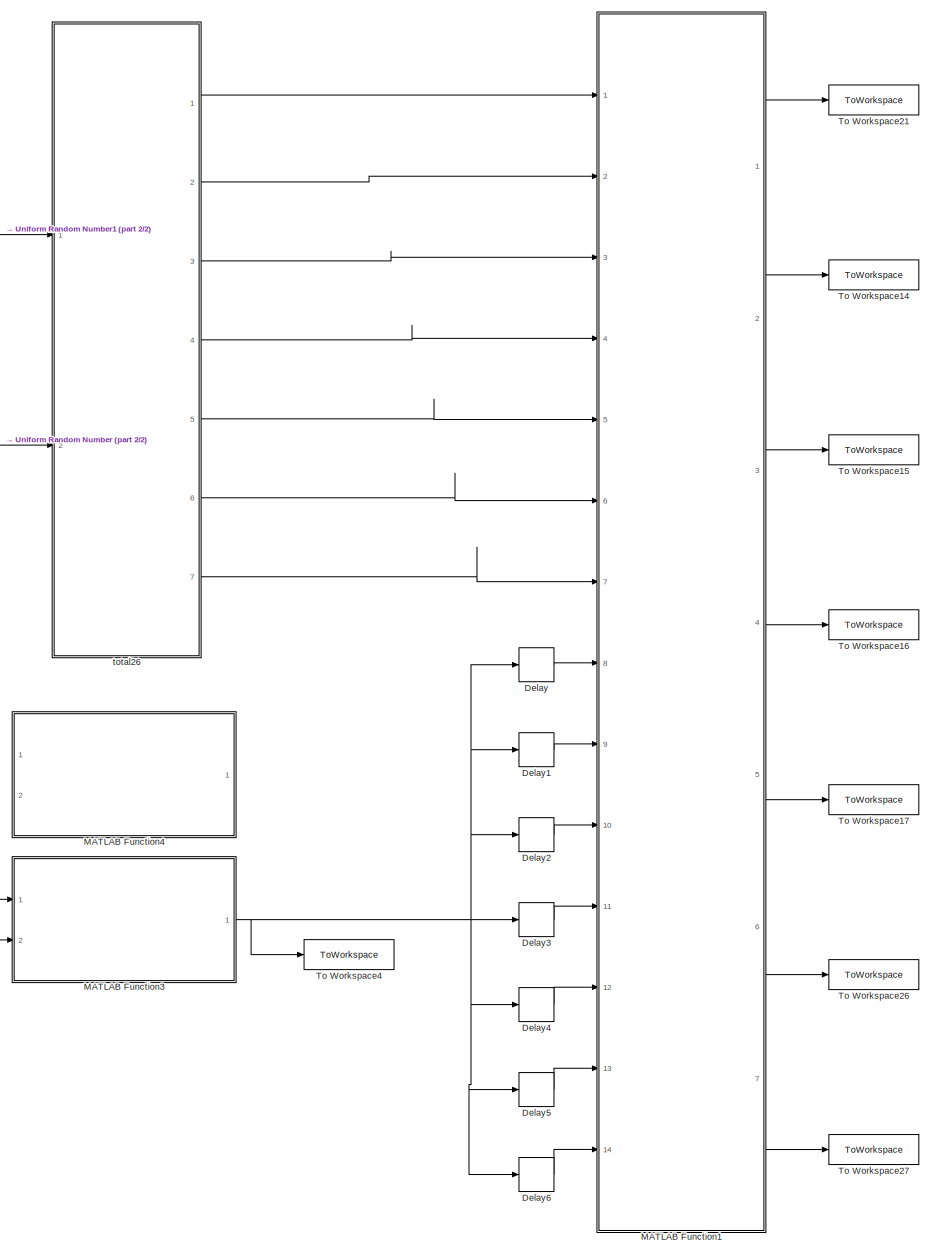
[diagram: root canvas - part 1/2, center side, full height]
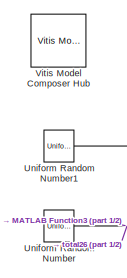
[diagram: root canvas - part 2/2, middle left region]
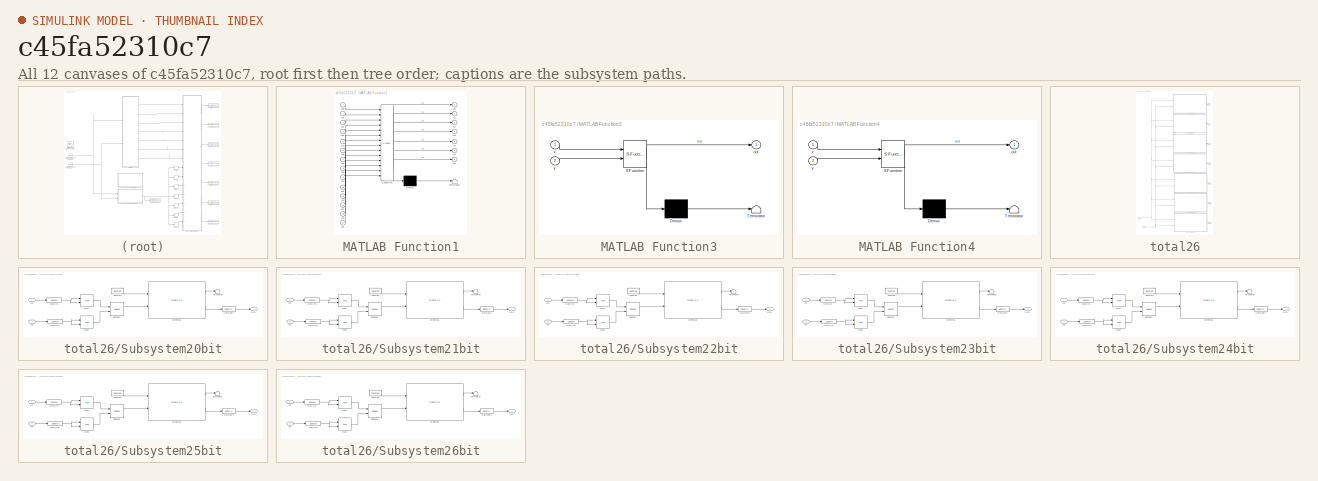
[diagram: thumbnail index - all 12 canvases of the model, root first then tree order]
MODEL slx_c45fa52310c7
KIND model
CONFIG AbsTol = auto
CONFIG EnableMultiTasking = off
CONFIG FixedStep = auto
CONFIG MaxStep = auto
CONFIG MinStep = auto
CONFIG RelTol = 1e-3
CONFIG SampleTimeConstraint = Unconstrained
CONFIG SolverName = VariableStepAuto
CONFIG StartTime = 0.0
CONFIG StopTime = 126
BLOCK [Delay] Delay
  DelayLength = 21
  InputPortMap = u0
  Ports = [1, 1]
BLOCK [Delay] Delay1
  DelayLength = 22
  InputPortMap = u0
  Ports = [1, 1]
BLOCK [Delay] Delay2
  DelayLength = 23
  InputPortMap = u0
  Ports = [1, 1]
BLOCK [Delay] Delay3
  DelayLength = 24
  InputPortMap = u0
  Ports = [1, 1]
BLOCK [Delay] Delay4
  DelayLength = 25
  InputPortMap = u0
  Ports = [1, 1]
BLOCK [Delay] Delay5
  DelayLength = 26
  InputPortMap = u0
  Ports = [1, 1]
BLOCK [Delay] Delay6
  DelayLength = 27
  InputPortMap = u0
  Ports = [1, 1]
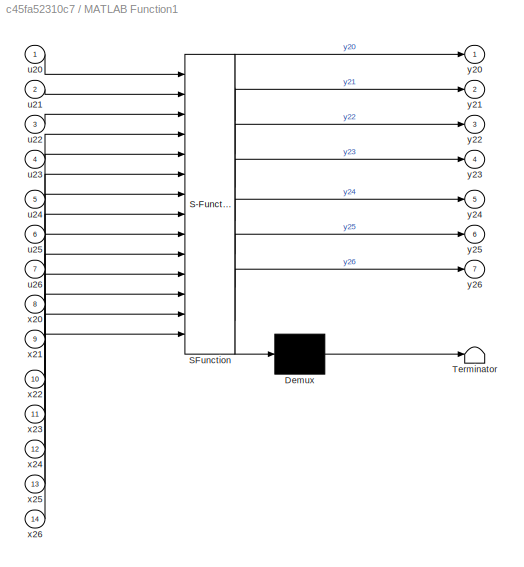
BLOCK [SubSystem] MATLAB Function1
  ErrorFcn = Stateflow.Translate.translate
  PermitHierarchicalResolution = ExplicitOnly
  Ports = [14, 7]
  RequestExecContextInheritance = off
  SFBlockType = MATLAB Function
  TreatAsAtomicUnit = on
BLOCK [Demux] MATLAB Function1/ Demux 
  Outputs = 1
  Ports = [1, 1]
BLOCK [S-Function] MATLAB Function1/ SFunction 
  EnableBusSupport = on
  FunctionName = sf_sfun
  PortCounts = [14 8]
  Ports = [14, 8]
  SFcnIsStateOwnerBlock = off
  SFunctionDeploymentMode = off
  Tag = Stateflow S-Function 1
BLOCK [Terminator] MATLAB Function1/ Terminator 
BLOCK [Inport] MATLAB Function1/u20
BLOCK [Inport] MATLAB Function1/u21
  Port = 2
BLOCK [Inport] MATLAB Function1/u22
  Port = 3
BLOCK [Inport] MATLAB Function1/u23
  Port = 4
BLOCK [Inport] MATLAB Function1/u24
  Port = 5
BLOCK [Inport] MATLAB Function1/u25
  Port = 6
BLOCK [Inport] MATLAB Function1/u26
  Port = 7
BLOCK [Inport] MATLAB Function1/x20
  Port = 8
BLOCK [Inport] MATLAB Function1/x21
  Port = 9
BLOCK [Inport] MATLAB Function1/x22
  Port = 10
BLOCK [Inport] MATLAB Function1/x23
  Port = 11
BLOCK [Inport] MATLAB Function1/x24
  Port = 12
BLOCK [Inport] MATLAB Function1/x25
  Port = 13
BLOCK [Inport] MATLAB Function1/x26
  Port = 14
BLOCK [Outport] MATLAB Function1/y20
BLOCK [Outport] MATLAB Function1/y21
  Port = 2
BLOCK [Outport] MATLAB Function1/y22
  Port = 3
BLOCK [Outport] MATLAB Function1/y23
  Port = 4
BLOCK [Outport] MATLAB Function1/y24
  Port = 5
BLOCK [Outport] MATLAB Function1/y25
  Port = 6
BLOCK [Outport] MATLAB Function1/y26
  Port = 7
BLOCK [SubSystem] MATLAB Function3
  ErrorFcn = Stateflow.Translate.translate
  PermitHierarchicalResolution = ExplicitOnly
  Ports = [2, 1]
  RequestExecContextInheritance = off
  SFBlockType = MATLAB Function
  TreatAsAtomicUnit = on
BLOCK [Demux] MATLAB Function3/ Demux 
  Outputs = 1
  Ports = [1, 1]
BLOCK [S-Function] MATLAB Function3/ SFunction 
  EnableBusSupport = on
  FunctionName = sf_sfun
  PortCounts = [2 2]
  Ports = [2, 2]
  SFcnIsStateOwnerBlock = off
  SFunctionDeploymentMode = off
  Tag = Stateflow S-Function 2
BLOCK [Terminator] MATLAB Function3/ Terminator 
BLOCK [Outport] MATLAB Function3/out
BLOCK [Inport] MATLAB Function3/x
BLOCK [Inport] MATLAB Function3/y
  Port = 2
BLOCK [SubSystem] MATLAB Function4
  Commented = on
  ErrorFcn = Stateflow.Translate.translate
  PermitHierarchicalResolution = ExplicitOnly
  Ports = [2, 1]
  RequestExecContextInheritance = off
  SFBlockType = MATLAB Function
  TreatAsAtomicUnit = on
BLOCK [Demux] MATLAB Function4/ Demux 
  Outputs = 1
  Ports = [1, 1]
BLOCK [S-Function] MATLAB Function4/ SFunction 
  EnableBusSupport = on
  FunctionName = sf_sfun
  PortCounts = [2 2]
  Ports = [2, 2]
  SFcnIsStateOwnerBlock = off
  SFunctionDeploymentMode = off
  Tag = Stateflow S-Function 4
BLOCK [Terminator] MATLAB Function4/ Terminator 
BLOCK [Outport] MATLAB Function4/out
BLOCK [Inport] MATLAB Function4/x
BLOCK [Inport] MATLAB Function4/y
  Port = 2
BLOCK [ToWorkspace] To Workspace14
  FixptAsFi = on
  MaxDataPoints = inf
  Ports = [1]
  SampleTime = -1
  SaveFormat = Structure With Time
  VariableName = out21
BLOCK [ToWorkspace] To Workspace15
  FixptAsFi = on
  MaxDataPoints = inf
  Ports = [1]
  SampleTime = -1
  SaveFormat = Structure With Time
  VariableName = out22
BLOCK [ToWorkspace] To Workspace16
  FixptAsFi = on
  MaxDataPoints = inf
  Ports = [1]
  SampleTime = -1
  SaveFormat = Structure With Time
  VariableName = out23
BLOCK [ToWorkspace] To Workspace17
  FixptAsFi = on
  MaxDataPoints = inf
  Ports = [1]
  SampleTime = -1
  SaveFormat = Structure With Time
  VariableName = out24
BLOCK [ToWorkspace] To Workspace21
  FixptAsFi = on
  MaxDataPoints = inf
  Ports = [1]
  SampleTime = -1
  SaveFormat = Structure With Time
  VariableName = out20
BLOCK [ToWorkspace] To Workspace26
  FixptAsFi = on
  MaxDataPoints = inf
  Ports = [1]
  SampleTime = -1
  SaveFormat = Structure With Time
  VariableName = out25
BLOCK [ToWorkspace] To Workspace27
  FixptAsFi = on
  MaxDataPoints = inf
  Ports = [1]
  SampleTime = -1
  SaveFormat = Structure With Time
  VariableName = out26
BLOCK [ToWorkspace] To Workspace4
  FixptAsFi = on
  MaxDataPoints = inf
  Ports = [1]
  SampleTime = -1
  SaveFormat = Structure With Time
  VariableName = outGOLD
BLOCK [UniformRandomNumber] Uniform Random Number
  Maximum = 0.9
  Minimum = -0.9
  SampleTime = 1
BLOCK [UniformRandomNumber] Uniform Random Number1
  Maximum = 0.9
  Minimum = -0.9
  SampleTime = 1
  Seed = 1
BLOCK [Reference] Vitis Model Composer Hub  REF=vmcUtilities/Vitis Model Composer Hub
  Ports = []
  SourceBlock = vmcUtilities/Vitis Model Composer Hub
  SourceType = Implementation
  Tag = genX
  UserDataPersistent = on
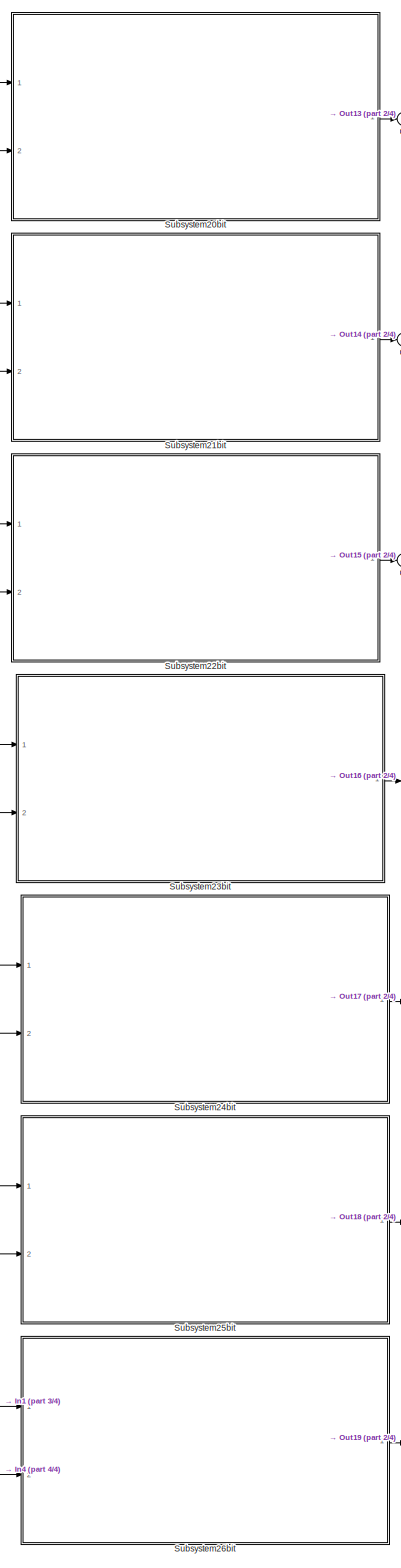
[diagram: total26 - part 1/4, right side, full height]
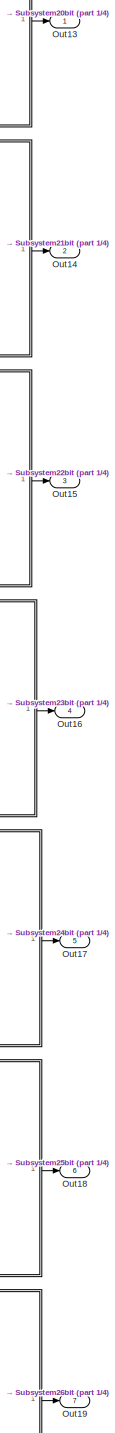
[diagram: total26 - part 2/4, right side, full height]
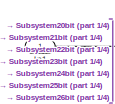
[diagram: total26 - part 3/4, bottom left region]
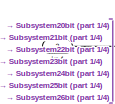
[diagram: total26 - part 4/4, bottom left region]
BLOCK [SubSystem] total26
  Ports = [2, 7]
  RequestExecContextInheritance = off
BLOCK [Inport] total26/In1
BLOCK [Inport] total26/In4
  Port = 2
BLOCK [Outport] total26/Out13
BLOCK [Outport] total26/Out14
  Port = 2
BLOCK [Outport] total26/Out15
  Port = 3
BLOCK [Outport] total26/Out16
  Port = 4
BLOCK [Outport] total26/Out17
  Port = 5
BLOCK [Outport] total26/Out18
  Port = 6
BLOCK [Outport] total26/Out19
  Port = 7
BLOCK [SubSystem] total26/Subsystem20bit
  Ports = [2, 1]
  RequestExecContextInheritance = off
BLOCK [Reference] total26/Subsystem20bit/CORDIC16  REF=hdlDSPIP/CORDIC 6.0 
  Ports = [2, 2]
  SourceBlock = hdlDSPIP/CORDIC 6.0
  SourceType = CORDIC 6.0 Block
BLOCK [Reference] total26/Subsystem20bit/Constant  REF=hdlBasic/Constant
  Ports = [0, 1]
  SourceBlock = hdlBasic/Constant
  SourceType = Constant Block Block
BLOCK [Reference] total26/Subsystem20bit/Gate_In1  REF=hdlBasic/Gateway In
  Ports = [1, 1]
  SourceBlock = hdlBasic/Gateway In
  SourceType = Gateway In Block
BLOCK [Reference] total26/Subsystem20bit/Gate_In2  REF=hdlBasic/Gateway In
  Ports = [1, 1]
  SourceBlock = hdlBasic/Gateway In
  SourceType = Gateway In Block
BLOCK [Reference] total26/Subsystem20bit/Gate_out1  REF=hdlBasic/Gateway Out
  Ports = [1, 1]
  SourceBlock = hdlBasic/Gateway Out
  SourceType = Gateway Out Block
BLOCK [Inport] total26/Subsystem20bit/In1
BLOCK [Inport] total26/Subsystem20bit/In2
  Port = 2
BLOCK [Reference] total26/Subsystem20bit/Mult1  REF=hdlBasic/Mult
  Ports = [2, 1]
  SourceBlock = hdlBasic/Mult
  SourceType = Multiplier Block
BLOCK [Reference] total26/Subsystem20bit/Mult2  REF=hdlBasic/Mult
  Ports = [2, 1]
  SourceBlock = hdlBasic/Mult
  SourceType = Multiplier Block
BLOCK [Outport] total26/Subsystem20bit/Out1
BLOCK [Terminator] total26/Subsystem20bit/Terminator
BLOCK [Reference] total26/Subsystem20bit/addsub1  REF=hdlBasic/AddSub
  Ports = [2, 1]
  SourceBlock = hdlBasic/AddSub
  SourceType = Adder/Subtracter Block
BLOCK [SubSystem] total26/Subsystem21bit
  Ports = [2, 1]
  RequestExecContextInheritance = off
BLOCK [Reference] total26/Subsystem21bit/CORDIC16  REF=hdlDSPIP/CORDIC 6.0 
  Ports = [2, 2]
  SourceBlock = hdlDSPIP/CORDIC 6.0
  SourceType = CORDIC 6.0 Block
BLOCK [Reference] total26/Subsystem21bit/Constant  REF=hdlBasic/Constant
  Ports = [0, 1]
  SourceBlock = hdlBasic/Constant
  SourceType = Constant Block Block
BLOCK [Reference] total26/Subsystem21bit/Gate_In1  REF=hdlBasic/Gateway In
  Ports = [1, 1]
  SourceBlock = hdlBasic/Gateway In
  SourceType = Gateway In Block
BLOCK [Reference] total26/Subsystem21bit/Gate_In2  REF=hdlBasic/Gateway In
  Ports = [1, 1]
  SourceBlock = hdlBasic/Gateway In
  SourceType = Gateway In Block
BLOCK [Reference] total26/Subsystem21bit/Gate_out1  REF=hdlBasic/Gateway Out
  Ports = [1, 1]
  SourceBlock = hdlBasic/Gateway Out
  SourceType = Gateway Out Block
BLOCK [Inport] total26/Subsystem21bit/In1
BLOCK [Inport] total26/Subsystem21bit/In2
  Port = 2
BLOCK [Reference] total26/Subsystem21bit/Mult1  REF=hdlBasic/Mult
  Ports = [2, 1]
  SourceBlock = hdlBasic/Mult
  SourceType = Multiplier Block
BLOCK [Reference] total26/Subsystem21bit/Mult2  REF=hdlBasic/Mult
  Ports = [2, 1]
  SourceBlock = hdlBasic/Mult
  SourceType = Multiplier Block
BLOCK [Outport] total26/Subsystem21bit/Out1
BLOCK [Terminator] total26/Subsystem21bit/Terminator
BLOCK [Reference] total26/Subsystem21bit/addsub1  REF=hdlBasic/AddSub
  Ports = [2, 1]
  SourceBlock = hdlBasic/AddSub
  SourceType = Adder/Subtracter Block
BLOCK [SubSystem] total26/Subsystem22bit
  Ports = [2, 1]
  RequestExecContextInheritance = off
BLOCK [Reference] total26/Subsystem22bit/CORDIC16  REF=hdlDSPIP/CORDIC 6.0 
  Ports = [2, 2]
  SourceBlock = hdlDSPIP/CORDIC 6.0
  SourceType = CORDIC 6.0 Block
BLOCK [Reference] total26/Subsystem22bit/Constant  REF=hdlBasic/Constant
  Ports = [0, 1]
  SourceBlock = hdlBasic/Constant
  SourceType = Constant Block Block
BLOCK [Reference] total26/Subsystem22bit/Gate_In1  REF=hdlBasic/Gateway In
  Ports = [1, 1]
  SourceBlock = hdlBasic/Gateway In
  SourceType = Gateway In Block
BLOCK [Reference] total26/Subsystem22bit/Gate_In2  REF=hdlBasic/Gateway In
  Ports = [1, 1]
  SourceBlock = hdlBasic/Gateway In
  SourceType = Gateway In Block
BLOCK [Reference] total26/Subsystem22bit/Gate_out1  REF=hdlBasic/Gateway Out
  Ports = [1, 1]
  SourceBlock = hdlBasic/Gateway Out
  SourceType = Gateway Out Block
BLOCK [Inport] total26/Subsystem22bit/In1
BLOCK [Inport] total26/Subsystem22bit/In2
  Port = 2
BLOCK [Reference] total26/Subsystem22bit/Mult1  REF=hdlBasic/Mult
  Ports = [2, 1]
  SourceBlock = hdlBasic/Mult
  SourceType = Multiplier Block
BLOCK [Reference] total26/Subsystem22bit/Mult2  REF=hdlBasic/Mult
  Ports = [2, 1]
  SourceBlock = hdlBasic/Mult
  SourceType = Multiplier Block
BLOCK [Outport] total26/Subsystem22bit/Out1
BLOCK [Terminator] total26/Subsystem22bit/Terminator
BLOCK [Reference] total26/Subsystem22bit/addsub1  REF=hdlBasic/AddSub
  Ports = [2, 1]
  SourceBlock = hdlBasic/AddSub
  SourceType = Adder/Subtracter Block
BLOCK [SubSystem] total26/Subsystem23bit
  Ports = [2, 1]
  RequestExecContextInheritance = off
BLOCK [Reference] total26/Subsystem23bit/CORDIC16  REF=hdlDSPIP/CORDIC 6.0 
  Ports = [2, 2]
  SourceBlock = hdlDSPIP/CORDIC 6.0
  SourceType = CORDIC 6.0 Block
BLOCK [Reference] total26/Subsystem23bit/Constant  REF=hdlBasic/Constant
  Ports = [0, 1]
  SourceBlock = hdlBasic/Constant
  SourceType = Constant Block Block
BLOCK [Reference] total26/Subsystem23bit/Gate_In1  REF=hdlBasic/Gateway In
  Ports = [1, 1]
  SourceBlock = hdlBasic/Gateway In
  SourceType = Gateway In Block
BLOCK [Reference] total26/Subsystem23bit/Gate_In2  REF=hdlBasic/Gateway In
  Ports = [1, 1]
  SourceBlock = hdlBasic/Gateway In
  SourceType = Gateway In Block
BLOCK [Reference] total26/Subsystem23bit/Gate_out1  REF=hdlBasic/Gateway Out
  Ports = [1, 1]
  SourceBlock = hdlBasic/Gateway Out
  SourceType = Gateway Out Block
BLOCK [Inport] total26/Subsystem23bit/In1
BLOCK [Inport] total26/Subsystem23bit/In2
  Port = 2
BLOCK [Reference] total26/Subsystem23bit/Mult1  REF=hdlBasic/Mult
  Ports = [2, 1]
  SourceBlock = hdlBasic/Mult
  SourceType = Multiplier Block
BLOCK [Reference] total26/Subsystem23bit/Mult2  REF=hdlBasic/Mult
  Ports = [2, 1]
  SourceBlock = hdlBasic/Mult
  SourceType = Multiplier Block
BLOCK [Outport] total26/Subsystem23bit/Out1
BLOCK [Terminator] total26/Subsystem23bit/Terminator
BLOCK [Reference] total26/Subsystem23bit/addsub1  REF=hdlBasic/AddSub
  Ports = [2, 1]
  SourceBlock = hdlBasic/AddSub
  SourceType = Adder/Subtracter Block
BLOCK [SubSystem] total26/Subsystem24bit
  Ports = [2, 1]
  RequestExecContextInheritance = off
BLOCK [Reference] total26/Subsystem24bit/CORDIC16  REF=hdlDSPIP/CORDIC 6.0 
  Ports = [2, 2]
  SourceBlock = hdlDSPIP/CORDIC 6.0
  SourceType = CORDIC 6.0 Block
BLOCK [Reference] total26/Subsystem24bit/Constant  REF=hdlBasic/Constant
  Ports = [0, 1]
  SourceBlock = hdlBasic/Constant
  SourceType = Constant Block Block
BLOCK [Reference] total26/Subsystem24bit/Gate_In1  REF=hdlBasic/Gateway In
  Ports = [1, 1]
  SourceBlock = hdlBasic/Gateway In
  SourceType = Gateway In Block
BLOCK [Reference] total26/Subsystem24bit/Gate_In2  REF=hdlBasic/Gateway In
  Ports = [1, 1]
  SourceBlock = hdlBasic/Gateway In
  SourceType = Gateway In Block
BLOCK [Reference] total26/Subsystem24bit/Gate_out1  REF=hdlBasic/Gateway Out
  Ports = [1, 1]
  SourceBlock = hdlBasic/Gateway Out
  SourceType = Gateway Out Block
BLOCK [Inport] total26/Subsystem24bit/In1
BLOCK [Inport] total26/Subsystem24bit/In2
  Port = 2
BLOCK [Reference] total26/Subsystem24bit/Mult1  REF=hdlBasic/Mult
  Ports = [2, 1]
  SourceBlock = hdlBasic/Mult
  SourceType = Multiplier Block
BLOCK [Reference] total26/Subsystem24bit/Mult2  REF=hdlBasic/Mult
  Ports = [2, 1]
  SourceBlock = hdlBasic/Mult
  SourceType = Multiplier Block
BLOCK [Outport] total26/Subsystem24bit/Out1
BLOCK [Terminator] total26/Subsystem24bit/Terminator
BLOCK [Reference] total26/Subsystem24bit/addsub1  REF=hdlBasic/AddSub
  Ports = [2, 1]
  SourceBlock = hdlBasic/AddSub
  SourceType = Adder/Subtracter Block
BLOCK [SubSystem] total26/Subsystem25bit
  Ports = [2, 1]
  RequestExecContextInheritance = off
BLOCK [Reference] total26/Subsystem25bit/CORDIC16  REF=hdlDSPIP/CORDIC 6.0 
  Ports = [2, 2]
  SourceBlock = hdlDSPIP/CORDIC 6.0
  SourceType = CORDIC 6.0 Block
BLOCK [Reference] total26/Subsystem25bit/Constant  REF=hdlBasic/Constant
  Ports = [0, 1]
  SourceBlock = hdlBasic/Constant
  SourceType = Constant Block Block
BLOCK [Reference] total26/Subsystem25bit/Gate_In1  REF=hdlBasic/Gateway In
  Ports = [1, 1]
  SourceBlock = hdlBasic/Gateway In
  SourceType = Gateway In Block
BLOCK [Reference] total26/Subsystem25bit/Gate_In2  REF=hdlBasic/Gateway In
  Ports = [1, 1]
  SourceBlock = hdlBasic/Gateway In
  SourceType = Gateway In Block
BLOCK [Reference] total26/Subsystem25bit/Gate_out1  REF=hdlBasic/Gateway Out
  Ports = [1, 1]
  SourceBlock = hdlBasic/Gateway Out
  SourceType = Gateway Out Block
BLOCK [Inport] total26/Subsystem25bit/In1
BLOCK [Inport] total26/Subsystem25bit/In2
  Port = 2
BLOCK [Reference] total26/Subsystem25bit/Mult1  REF=hdlBasic/Mult
  Ports = [2, 1]
  SourceBlock = hdlBasic/Mult
  SourceType = Multiplier Block
BLOCK [Reference] total26/Subsystem25bit/Mult2  REF=hdlBasic/Mult
  Ports = [2, 1]
  SourceBlock = hdlBasic/Mult
  SourceType = Multiplier Block
BLOCK [Outport] total26/Subsystem25bit/Out1
BLOCK [Terminator] total26/Subsystem25bit/Terminator
BLOCK [Reference] total26/Subsystem25bit/addsub1  REF=hdlBasic/AddSub
  Ports = [2, 1]
  SourceBlock = hdlBasic/AddSub
  SourceType = Adder/Subtracter Block
BLOCK [SubSystem] total26/Subsystem26bit
  Ports = [2, 1]
  RequestExecContextInheritance = off
BLOCK [Reference] total26/Subsystem26bit/CORDIC16  REF=hdlDSPIP/CORDIC 6.0 
  Ports = [2, 2]
  SourceBlock = hdlDSPIP/CORDIC 6.0
  SourceType = CORDIC 6.0 Block
BLOCK [Reference] total26/Subsystem26bit/Constant  REF=hdlBasic/Constant
  Ports = [0, 1]
  SourceBlock = hdlBasic/Constant
  SourceType = Constant Block Block
BLOCK [Reference] total26/Subsystem26bit/Gate_In1  REF=hdlBasic/Gateway In
  Ports = [1, 1]
  SourceBlock = hdlBasic/Gateway In
  SourceType = Gateway In Block
BLOCK [Reference] total26/Subsystem26bit/Gate_In2  REF=hdlBasic/Gateway In
  Ports = [1, 1]
  SourceBlock = hdlBasic/Gateway In
  SourceType = Gateway In Block
BLOCK [Reference] total26/Subsystem26bit/Gate_out1  REF=hdlBasic/Gateway Out
  Ports = [1, 1]
  SourceBlock = hdlBasic/Gateway Out
  SourceType = Gateway Out Block
BLOCK [Inport] total26/Subsystem26bit/In1
BLOCK [Inport] total26/Subsystem26bit/In2
  Port = 2
BLOCK [Reference] total26/Subsystem26bit/Mult1  REF=hdlBasic/Mult
  Ports = [2, 1]
  SourceBlock = hdlBasic/Mult
  SourceType = Multiplier Block
BLOCK [Reference] total26/Subsystem26bit/Mult2  REF=hdlBasic/Mult
  Ports = [2, 1]
  SourceBlock = hdlBasic/Mult
  SourceType = Multiplier Block
BLOCK [Outport] total26/Subsystem26bit/Out1
BLOCK [Terminator] total26/Subsystem26bit/Terminator
BLOCK [Reference] total26/Subsystem26bit/addsub1  REF=hdlBasic/AddSub
  Ports = [2, 1]
  SourceBlock = hdlBasic/AddSub
  SourceType = Adder/Subtracter Block
LINE Delay1:1 -> MATLAB Function1:9
LINE Delay2:1 -> MATLAB Function1:10
LINE Delay3:1 -> MATLAB Function1:11
LINE Delay4:1 -> MATLAB Function1:12
LINE Delay5:1 -> MATLAB Function1:13
LINE Delay6:1 -> MATLAB Function1:14
LINE Delay:1 -> MATLAB Function1:8
LINE MATLAB Function1:1 -> To Workspace21:1
LINE MATLAB Function1:2 -> To Workspace14:1
LINE MATLAB Function1:3 -> To Workspace15:1
LINE MATLAB Function1:4 -> To Workspace16:1
LINE MATLAB Function1:5 -> To Workspace17:1
LINE MATLAB Function1:6 -> To Workspace26:1
LINE MATLAB Function1:7 -> To Workspace27:1
NET MATLAB Function3:1 -> Delay1:1, Delay2:1, Delay3:1, Delay4:1, Delay5:1, Delay6:1, Delay:1, To Workspace4:1
NET Uniform Random Number1:1 -> MATLAB Function3:1, total26:1
NET Uniform Random Number:1 -> MATLAB Function3:2, total26:2
NET total26/In1:1 -> total26/Subsystem20bit:1, total26/Subsystem21bit:1, total26/Subsystem22bit:1, total26/Subsystem23bit:1, total26/Subsystem24bit:1, total26/Subsystem25bit:1, total26/Subsystem26bit:1
NET total26/In4:1 -> total26/Subsystem20bit:2, total26/Subsystem21bit:2, total26/Subsystem22bit:2, total26/Subsystem23bit:2, total26/Subsystem24bit:2, total26/Subsystem25bit:2, total26/Subsystem26bit:2
LINE total26/Subsystem20bit/CORDIC16:1 -> total26/Subsystem20bit/Terminator:1
LINE total26/Subsystem20bit/CORDIC16:2 -> total26/Subsystem20bit/Gate_out1:1
LINE total26/Subsystem20bit/Constant:1 -> total26/Subsystem20bit/CORDIC16:1
NET total26/Subsystem20bit/Gate_In1:1 -> total26/Subsystem20bit/Mult1:1, total26/Subsystem20bit/Mult1:2
NET total26/Subsystem20bit/Gate_In2:1 -> total26/Subsystem20bit/Mult2:1, total26/Subsystem20bit/Mult2:2
LINE total26/Subsystem20bit/Gate_out1:1 -> total26/Subsystem20bit/Out1:1
LINE total26/Subsystem20bit/In1:1 -> total26/Subsystem20bit/Gate_In1:1
LINE total26/Subsystem20bit/In2:1 -> total26/Subsystem20bit/Gate_In2:1
LINE total26/Subsystem20bit/Mult1:1 -> total26/Subsystem20bit/addsub1:1
LINE total26/Subsystem20bit/Mult2:1 -> total26/Subsystem20bit/addsub1:2
LINE total26/Subsystem20bit/addsub1:1 -> total26/Subsystem20bit/CORDIC16:2
LINE total26/Subsystem20bit:1 -> total26/Out13:1
LINE total26/Subsystem21bit/CORDIC16:1 -> total26/Subsystem21bit/Terminator:1
LINE total26/Subsystem21bit/CORDIC16:2 -> total26/Subsystem21bit/Gate_out1:1
LINE total26/Subsystem21bit/Constant:1 -> total26/Subsystem21bit/CORDIC16:1
NET total26/Subsystem21bit/Gate_In1:1 -> total26/Subsystem21bit/Mult1:1, total26/Subsystem21bit/Mult1:2
NET total26/Subsystem21bit/Gate_In2:1 -> total26/Subsystem21bit/Mult2:1, total26/Subsystem21bit/Mult2:2
LINE total26/Subsystem21bit/Gate_out1:1 -> total26/Subsystem21bit/Out1:1
LINE total26/Subsystem21bit/In1:1 -> total26/Subsystem21bit/Gate_In1:1
LINE total26/Subsystem21bit/In2:1 -> total26/Subsystem21bit/Gate_In2:1
LINE total26/Subsystem21bit/Mult1:1 -> total26/Subsystem21bit/addsub1:1
LINE total26/Subsystem21bit/Mult2:1 -> total26/Subsystem21bit/addsub1:2
LINE total26/Subsystem21bit/addsub1:1 -> total26/Subsystem21bit/CORDIC16:2
LINE total26/Subsystem21bit:1 -> total26/Out14:1
LINE total26/Subsystem22bit/CORDIC16:1 -> total26/Subsystem22bit/Terminator:1
LINE total26/Subsystem22bit/CORDIC16:2 -> total26/Subsystem22bit/Gate_out1:1
LINE total26/Subsystem22bit/Constant:1 -> total26/Subsystem22bit/CORDIC16:1
NET total26/Subsystem22bit/Gate_In1:1 -> total26/Subsystem22bit/Mult1:1, total26/Subsystem22bit/Mult1:2
NET total26/Subsystem22bit/Gate_In2:1 -> total26/Subsystem22bit/Mult2:1, total26/Subsystem22bit/Mult2:2
LINE total26/Subsystem22bit/Gate_out1:1 -> total26/Subsystem22bit/Out1:1
LINE total26/Subsystem22bit/In1:1 -> total26/Subsystem22bit/Gate_In1:1
LINE total26/Subsystem22bit/In2:1 -> total26/Subsystem22bit/Gate_In2:1
LINE total26/Subsystem22bit/Mult1:1 -> total26/Subsystem22bit/addsub1:1
LINE total26/Subsystem22bit/Mult2:1 -> total26/Subsystem22bit/addsub1:2
LINE total26/Subsystem22bit/addsub1:1 -> total26/Subsystem22bit/CORDIC16:2
LINE total26/Subsystem22bit:1 -> total26/Out15:1
LINE total26/Subsystem23bit/CORDIC16:1 -> total26/Subsystem23bit/Terminator:1
LINE total26/Subsystem23bit/CORDIC16:2 -> total26/Subsystem23bit/Gate_out1:1
LINE total26/Subsystem23bit/Constant:1 -> total26/Subsystem23bit/CORDIC16:1
NET total26/Subsystem23bit/Gate_In1:1 -> total26/Subsystem23bit/Mult1:1, total26/Subsystem23bit/Mult1:2
NET total26/Subsystem23bit/Gate_In2:1 -> total26/Subsystem23bit/Mult2:1, total26/Subsystem23bit/Mult2:2
LINE total26/Subsystem23bit/Gate_out1:1 -> total26/Subsystem23bit/Out1:1
LINE total26/Subsystem23bit/In1:1 -> total26/Subsystem23bit/Gate_In1:1
LINE total26/Subsystem23bit/In2:1 -> total26/Subsystem23bit/Gate_In2:1
LINE total26/Subsystem23bit/Mult1:1 -> total26/Subsystem23bit/addsub1:1
LINE total26/Subsystem23bit/Mult2:1 -> total26/Subsystem23bit/addsub1:2
LINE total26/Subsystem23bit/addsub1:1 -> total26/Subsystem23bit/CORDIC16:2
LINE total26/Subsystem23bit:1 -> total26/Out16:1
LINE total26/Subsystem24bit/CORDIC16:1 -> total26/Subsystem24bit/Terminator:1
LINE total26/Subsystem24bit/CORDIC16:2 -> total26/Subsystem24bit/Gate_out1:1
LINE total26/Subsystem24bit/Constant:1 -> total26/Subsystem24bit/CORDIC16:1
NET total26/Subsystem24bit/Gate_In1:1 -> total26/Subsystem24bit/Mult1:1, total26/Subsystem24bit/Mult1:2
NET total26/Subsystem24bit/Gate_In2:1 -> total26/Subsystem24bit/Mult2:1, total26/Subsystem24bit/Mult2:2
LINE total26/Subsystem24bit/Gate_out1:1 -> total26/Subsystem24bit/Out1:1
LINE total26/Subsystem24bit/In1:1 -> total26/Subsystem24bit/Gate_In1:1
LINE total26/Subsystem24bit/In2:1 -> total26/Subsystem24bit/Gate_In2:1
LINE total26/Subsystem24bit/Mult1:1 -> total26/Subsystem24bit/addsub1:1
LINE total26/Subsystem24bit/Mult2:1 -> total26/Subsystem24bit/addsub1:2
LINE total26/Subsystem24bit/addsub1:1 -> total26/Subsystem24bit/CORDIC16:2
LINE total26/Subsystem24bit:1 -> total26/Out17:1
LINE total26/Subsystem25bit/CORDIC16:1 -> total26/Subsystem25bit/Terminator:1
LINE total26/Subsystem25bit/CORDIC16:2 -> total26/Subsystem25bit/Gate_out1:1
LINE total26/Subsystem25bit/Constant:1 -> total26/Subsystem25bit/CORDIC16:1
NET total26/Subsystem25bit/Gate_In1:1 -> total26/Subsystem25bit/Mult1:1, total26/Subsystem25bit/Mult1:2
NET total26/Subsystem25bit/Gate_In2:1 -> total26/Subsystem25bit/Mult2:1, total26/Subsystem25bit/Mult2:2
LINE total26/Subsystem25bit/Gate_out1:1 -> total26/Subsystem25bit/Out1:1
LINE total26/Subsystem25bit/In1:1 -> total26/Subsystem25bit/Gate_In1:1
LINE total26/Subsystem25bit/In2:1 -> total26/Subsystem25bit/Gate_In2:1
LINE total26/Subsystem25bit/Mult1:1 -> total26/Subsystem25bit/addsub1:1
LINE total26/Subsystem25bit/Mult2:1 -> total26/Subsystem25bit/addsub1:2
LINE total26/Subsystem25bit/addsub1:1 -> total26/Subsystem25bit/CORDIC16:2
LINE total26/Subsystem25bit:1 -> total26/Out18:1
LINE total26/Subsystem26bit/CORDIC16:1 -> total26/Subsystem26bit/Terminator:1
LINE total26/Subsystem26bit/CORDIC16:2 -> total26/Subsystem26bit/Gate_out1:1
LINE total26/Subsystem26bit/Constant:1 -> total26/Subsystem26bit/CORDIC16:1
NET total26/Subsystem26bit/Gate_In1:1 -> total26/Subsystem26bit/Mult1:1, total26/Subsystem26bit/Mult1:2
NET total26/Subsystem26bit/Gate_In2:1 -> total26/Subsystem26bit/Mult2:1, total26/Subsystem26bit/Mult2:2
LINE total26/Subsystem26bit/Gate_out1:1 -> total26/Subsystem26bit/Out1:1
LINE total26/Subsystem26bit/In1:1 -> total26/Subsystem26bit/Gate_In1:1
LINE total26/Subsystem26bit/In2:1 -> total26/Subsystem26bit/Gate_In2:1
LINE total26/Subsystem26bit/Mult1:1 -> total26/Subsystem26bit/addsub1:1
LINE total26/Subsystem26bit/Mult2:1 -> total26/Subsystem26bit/addsub1:2
LINE total26/Subsystem26bit/addsub1:1 -> total26/Subsystem26bit/CORDIC16:2
LINE total26/Subsystem26bit:1 -> total26/Out19:1
LINE total26:1 -> MATLAB Function1:1
LINE total26:2 -> MATLAB Function1:2
LINE total26:3 -> MATLAB Function1:3
LINE total26:4 -> MATLAB Function1:4
LINE total26:5 -> MATLAB Function1:5
LINE total26:6 -> MATLAB Function1:6
LINE total26:7 -> MATLAB Function1:7
note: NET lines group one-source signal fan-out (src -> all destinations, sorted); 1:1 wires keep LINE
CHART MATLAB Function3 states=1 transitions=1
  STATE_LABEL 'eML_blk_kernel()'
  STATE_LABEL 'SCRIPT:\nfunction out = fcn(x,y)\nout = sqrt(x.^2 + y.^2);\n'
CHART MATLAB Function4 states=1 transitions=1
  STATE_LABEL 'eML_blk_kernel()'
  STATE_LABEL 'SCRIPT:\nfunction out = fcn(x,y)\ntmp1 = x.^2 + y.^2;\nout = cordicsqrt(tmp1);\n'
CHART MATLAB Function1 states=1 transitions=1
  STATE_LABEL 'eML_blk_kernel()'
  STATE_LABEL 'SCRIPT:\nfunction [y20,y21,y22,y23,y24,y25,y26] = fcn(u20,u21,u22,u23,u24,u25,u26,x20,x21,x22,x23,x24,x25,x26)\ny20 = (u20 - x20).^2;\ny21 = (u21 - x21).^2;\ny22 = (u22 - x22).^2;\ny23 = (u23 - x23).^2;\ny24 = (u24 - x24).^2;\ny25 = (u25 - x25).^2;\ny26 = (u26 - x26).^2;\n'
CHART  states=0 transitions=0
CHART  states=0 transitions=0
CHART  states=0 transitions=0
